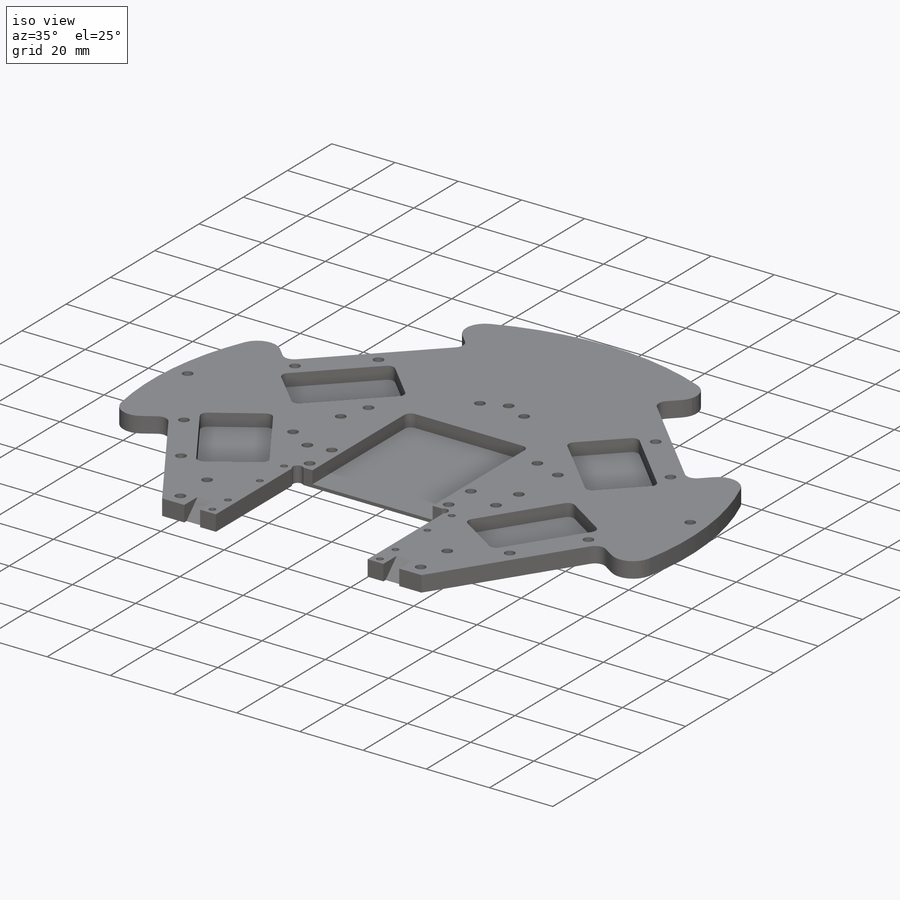
[diagram: iso view]
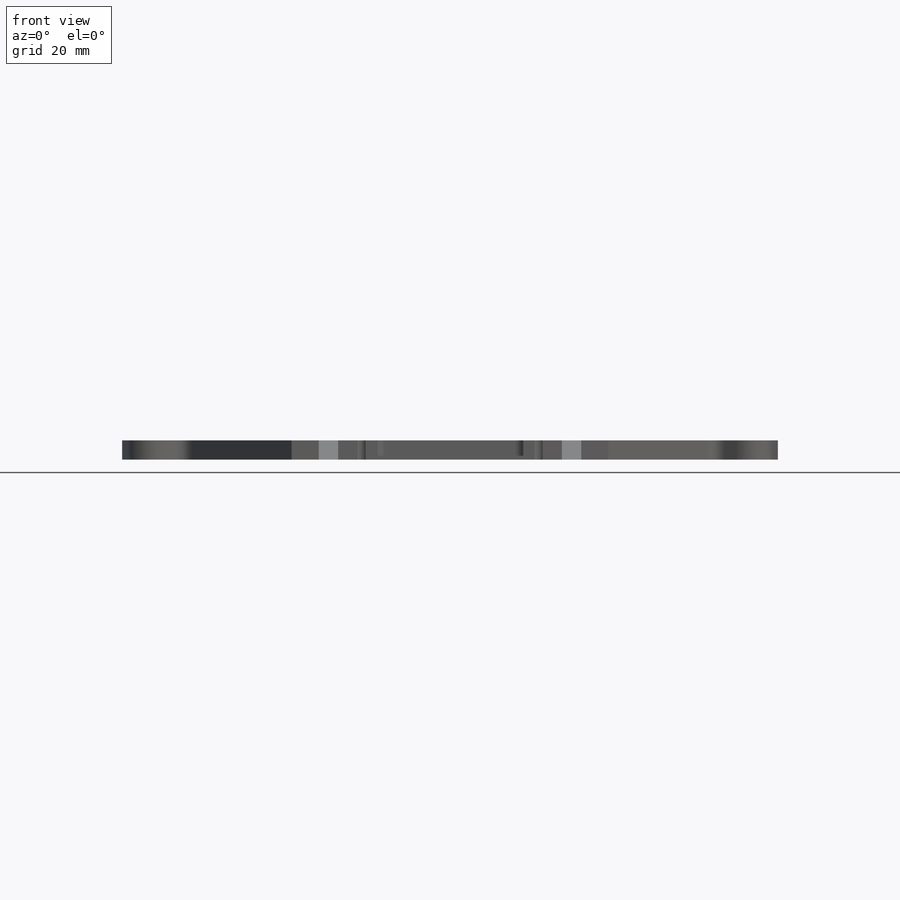
[diagram: front view]
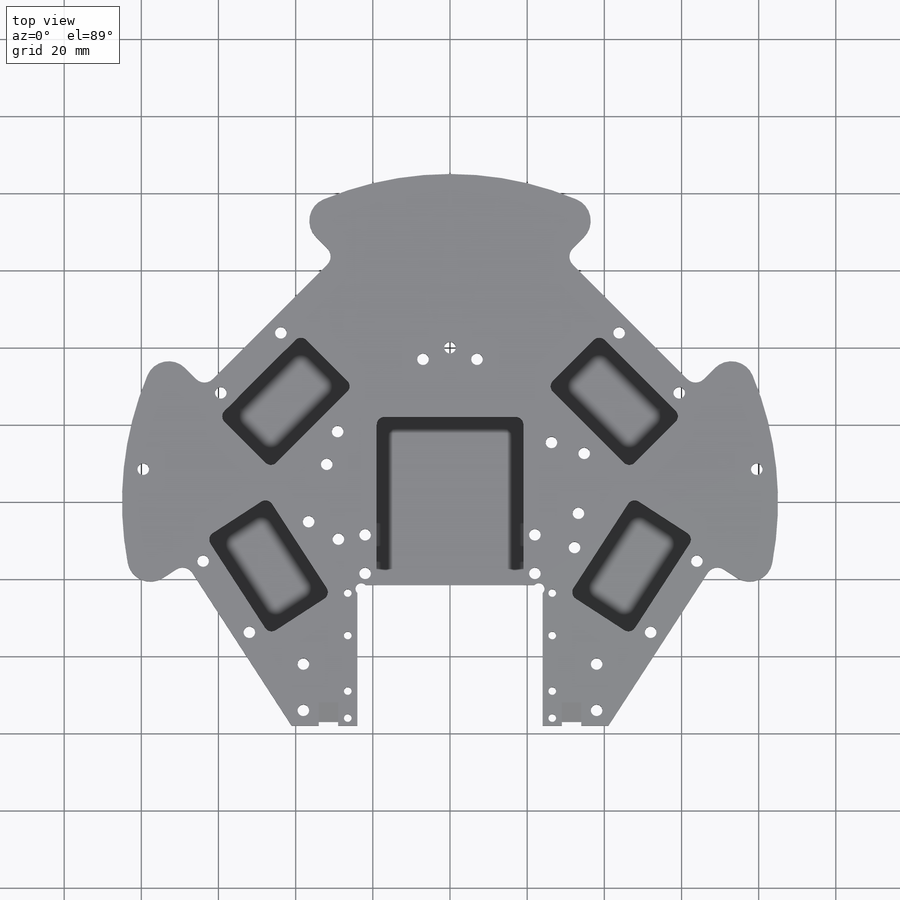
[diagram: top view]
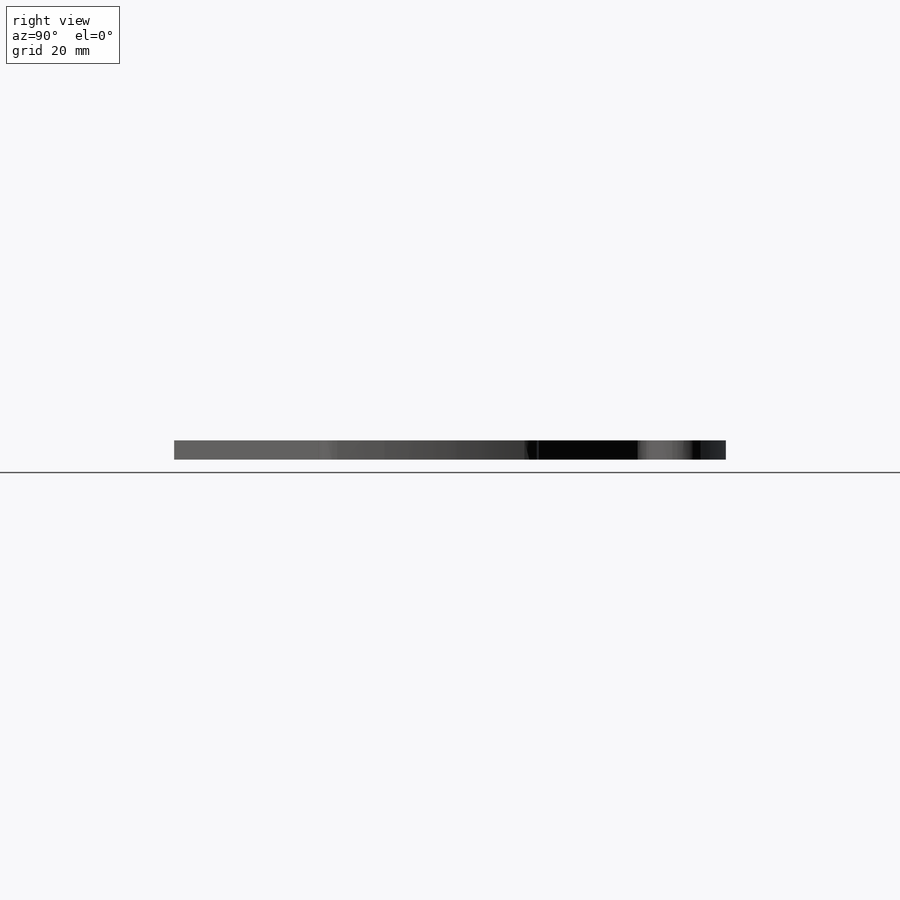
[diagram: right view]
SOLIDWORKS PART (.sldprt)
format: sldprt  version: not decoded by parser v0  size: 619,520 bytes
history: native  units: mm
features: sketch x11, cut_extrude x10, mirror x4, fillet x3, material x1, extrude x1, plane x1 (+11 scaffold rows collapsed)
feature tree (42):
  scaffold x11  (default folders/planes/origin — collapsed)
  material  "Material <not specified>"
  sketch  "Sketch1"  dims[D1=170.0mm]
  extrude  "Boss-Extrude1"  Depth=5mm
  sketch  "Sketch2"  dims[c1.D8=3.0mm c1.D1=66.0mm c1.D2=48.0mm c1.D3=66.0mm c2.D3=~43.151248deg c3.D3=66.0mm c4.D3=45.0deg c4.D4=8.0mm c4.D5=19.0mm c4.D6=30.0mm c4.D7=3.0mm c4.D9=22.0mm c4.D10=4.0mm c4.D11=4.0mm]
  cut_extrude  "Cut-Extrude1"  [1 undecoded]
  sketch  "Sketch3"  dims[c1.D5=3.0mm c1.D1=48.0mm c2.D1=~0.278133deg c3.D1=~29.992479mm c4.D1=~0.278133deg c5.D1=19.0mm c5.D2=30.0mm c5.D3=8.0mm c5.D4=2.68mm c5.D5=11.68mm]
  cut_extrude  "Cut-Extrude2"  Depth=4mm
  fillet  "Fillet2"  Radius=2mm
  fillet  "Fillet3"  Radius=6mm
  fillet  "Fillet4"  Radius=3mm
  plane  "Plane1"
  mirror  "Mirror1"
  mirror  "Mirror2"
  sketch  "Sketch4"  dims[D1=48.0mm D2=36.5mm D3=21.5mm D4=18.0mm D5=24.0mm]
  cut_extrude  "Cut-Extrude3"  [1 undecoded]
  sketch  "Sketch5"  dims[D1=3.0mm D2=1.0mm D3=1.0mm D4=1.0mm]
  cut_extrude  "Cut-Extrude4"  [1 undecoded]
  sketch  "Sketch6"  dims[c1.D1=3.0mm c1.D6=3.0mm c1.D9=3.0mm c1.D12=3.0mm c1.D21=3.0mm c1.D2=4.0mm c1.D3=8.0mm c1.D4=5.5mm c1.D5=11.0mm c2.D6=11.0mm c2.D7=4.0mm c2.D8=8.0mm c2.D10=4.0mm c2.D11=8.0mm c2.D13=4.0mm c2.D14=8.0mm c2.D15=11.0mm c2.D16=5.5mm c2.D17=11.0mm c2.D18=5.5mm c2.D19=11.0mm c2.D20=5.5mm c2.D21=15.0mm]
  cut_extrude  "Cut-Extrude5"  [1 undecoded]
  sketch  "Sketch7"  dims[c1.D1=3.0mm c1.D5=3.0mm c1.D2=14.0mm c1.D3=6.7mm c1.D4=37.3mm c1.D6=10.0mm c1.D7=44.0mm c1.D8=3.0mm c1.D9=22.0mm c2.D4=37.0mm c2.D1=3.0mm]
  cut_extrude  "Cut-Extrude6"  [1 undecoded]
  sketch  "Sketch8"  dims[c1.D5=2.0mm c1.D6=3.0mm c1.D1=2.0mm c1.D2=7.0mm c1.D3=11.0mm c1.D4=14.4mm c1.D7=12.0mm c1.D8=4.2mm c1.D9=2.5mm c1.D10=~5.228114mm c2.D8=4.0mm c2.D10=14.0mm]
  cut_extrude  "Cut-Extrude7"  [1 undecoded]
  mirror  "Mirror3"
  sketch  "Sketch9"  dims[c1.D1=~5.226917mm c2.D1=45.0deg c2.D2=1.0mm]
  cut_extrude  "Cut-Extrude8"  Depth=5mm
  mirror  "Mirror4"
  sketch  "Sketch10"  dims[D4=2.0mm D1=5.0mm D2=5.0mm D3=43.5mm]
  cut_extrude  "Cut-Extrude9"  Depth=4mm
  sketch  "Sketch11"  dims[D1=3.0mm D2=79.5mm D3=8.5mm D4=79.5mm]
  cut_extrude  "Cut-Extrude10"  [1 undecoded]
decode coverage: 18 of 29 modeling features carry decoded parameters
note: ~ marks probable driven/reference dimensions
note: 7 parameter values undecoded
summary: no parameter record found for 7 features
note: suppression state not decoded; provenance and decode notes live in map.json
